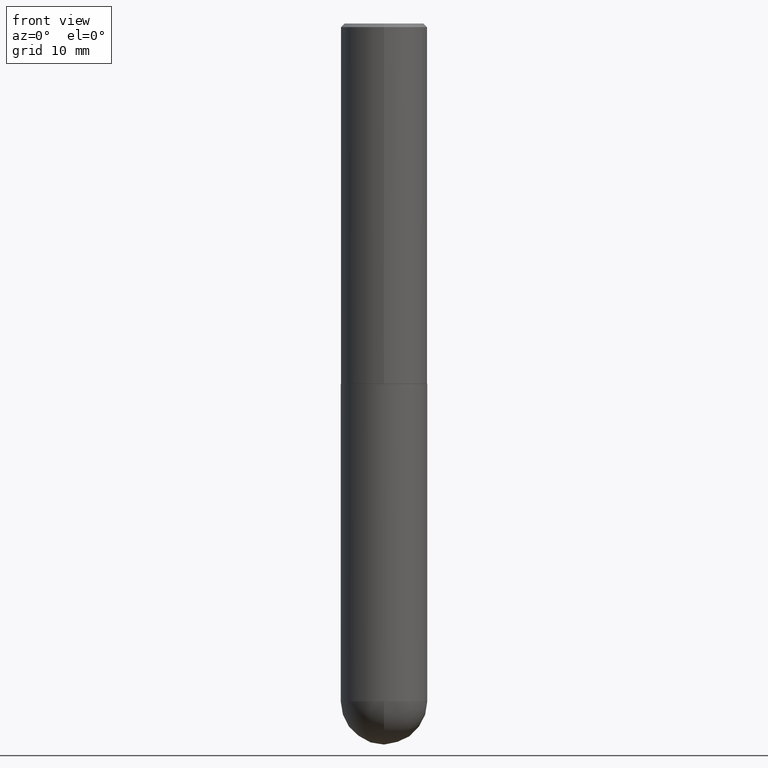
[diagram: clean part render]
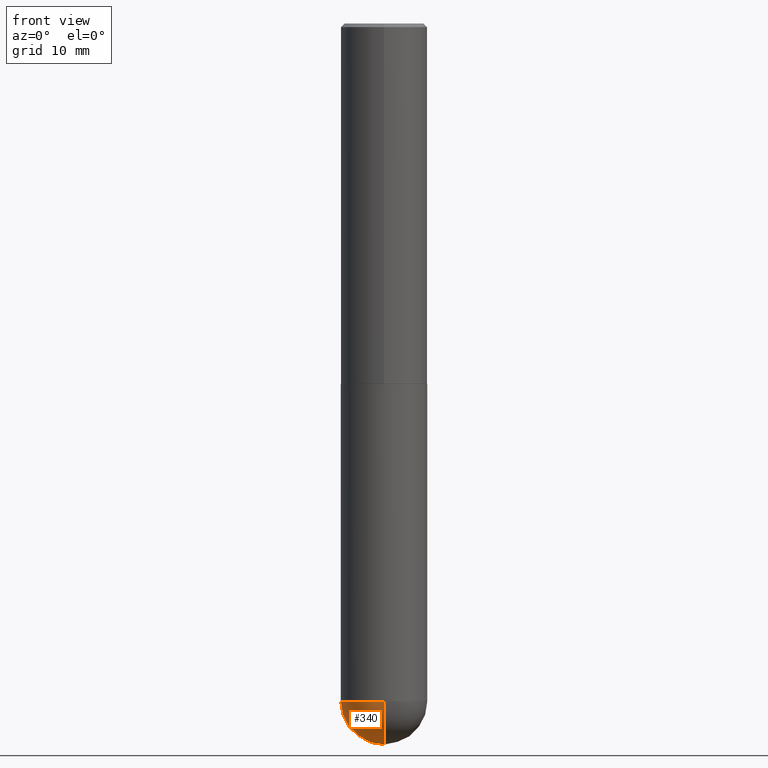
[diagram: same view with one face highlighted and labeled with its STEP entity id]
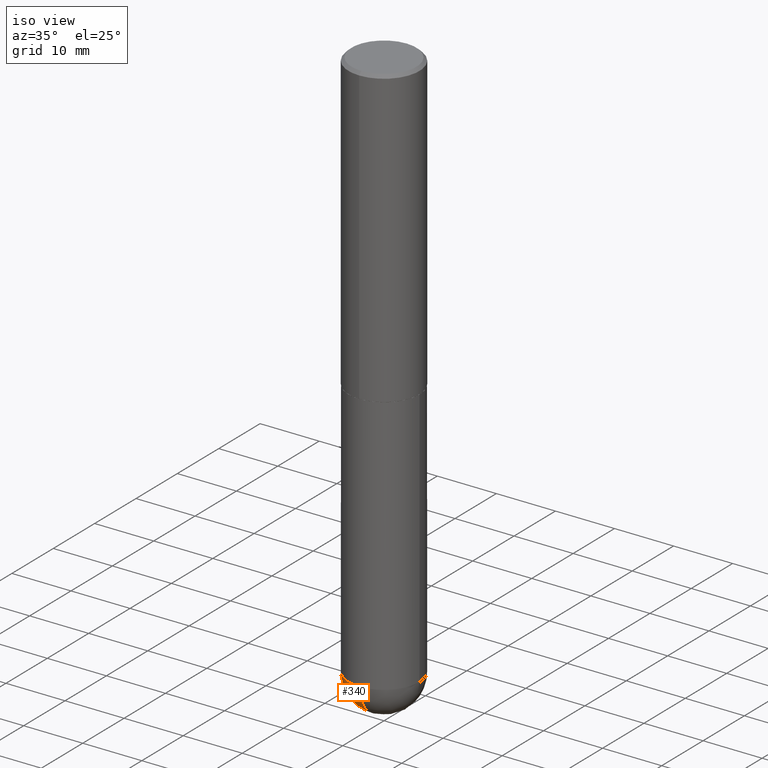
[diagram: same view with one face highlighted and labeled with its STEP entity id]
A machine part, front view. The second image highlights one B-rep face of the part: STEP entity #340.
A second angle (iso view) of the same face is appended — the face is thin or edge-on in the first view.
In plain terms, the highlighted spherical surface has radius 5.9995 mm.
Its self-contained STEP definition (entity closure, byte-faithful):
#18 = DIRECTION ( 'NONE',  ( -2.445468806185136597E-29, 3.491481338843145583E-15, 1.000000000000000000 ) ) ;
#20 = AXIS2_PLACEMENT_3D ( 'NONE', #272, #152, #342 ) ;
#36 = ORIENTED_EDGE ( 'NONE', *, *, #328, .F. ) ;
#49 = DIRECTION ( 'NONE',  ( -7.105427357601001070E-15, -1.000000000000000000, 0.000000000000000000 ) ) ;
#55 = CARTESIAN_POINT ( 'NONE',  ( 9.050190957929953666E-29, -1.292127413879071357E-14, -3.700800000000000090 ) ) ;
#57 = CIRCLE ( 'NONE', #120, 0.2362000000000002709 ) ;
#58 = EDGE_CURVE ( 'NONE', #216, #354, #57, .T. ) ;
#72 = AXIS2_PLACEMENT_3D ( 'NONE', #129, #285, #314 ) ;
#88 = CARTESIAN_POINT ( 'NONE',  ( -0.2361999999999999933, -8.218825635286368613E-15, -3.700800000000000090 ) ) ;
#95 = ORIENTED_EDGE ( 'NONE', *, *, #291, .F. ) ;
#111 = SPHERICAL_SURFACE ( 'NONE', #72, 0.2362000000000002709 ) ;
#120 = AXIS2_PLACEMENT_3D ( 'NONE', #399, #237, #49 ) ;
#129 = CARTESIAN_POINT ( 'NONE',  ( 8.719071180016067419E-29, -1.339545650693076387E-14, -3.700800000000000090 ) ) ;
#149 = CIRCLE ( 'NONE', #387, 0.2361999999999999933 ) ;
#152 = DIRECTION ( 'NONE',  ( -2.445468806185136597E-29, 3.491481338843145583E-15, 1.000000000000000000 ) ) ;
#162 = ORIENTED_EDGE ( 'NONE', *, *, #58, .T. ) ;
#179 = CARTESIAN_POINT ( 'NONE',  ( 9.306790425912204830E-29, -1.420568132046758614E-14, -3.937000000000000277 ) ) ;
#183 = DIRECTION ( 'NONE',  ( 1.000000000000000000, -6.982962677686265133E-15, 0.000000000000000000 ) ) ;
#216 = VERTEX_POINT ( 'NONE', #179 ) ;
#217 = DIRECTION ( 'NONE',  ( 1.000000000000000000, -6.982962677686265922E-15, 4.883557194083112340E-29 ) ) ;
#218 = CARTESIAN_POINT ( 'NONE',  ( 1.649375784469585666E-15, 0.2361999999999869759, -3.700800000000000978 ) ) ;
#224 = EDGE_LOOP ( 'NONE', ( #308, #162, #95, #36 ) ) ;
#237 = DIRECTION ( 'NONE',  ( -1.000000000000000000, 7.105427357601001070E-15, -4.926315508542082329E-29 ) ) ;
#250 = VERTEX_POINT ( 'NONE', #218 ) ;
#270 = FACE_OUTER_BOUND ( 'NONE', #224, .T. ) ;
#272 = CARTESIAN_POINT ( 'NONE',  ( 9.050190957929953666E-29, -1.292127413879071357E-14, -3.700800000000000090 ) ) ;
#282 = CARTESIAN_POINT ( 'NONE',  ( -1.678301941865268633E-15, -0.2362000000000132882, -3.700799999999998757 ) ) ;
#285 = DIRECTION ( 'NONE',  ( -1.000000000000000000, 6.982962677686265922E-15, -4.883557194083112901E-29 ) ) ;
#291 = EDGE_CURVE ( 'NONE', #317, #354, #395, .T. ) ;
#308 = ORIENTED_EDGE ( 'NONE', *, *, #323, .F. ) ;
#310 = CARTESIAN_POINT ( 'NONE',  ( 8.719071180016067419E-29, -1.339545650693076387E-14, -3.700800000000000090 ) ) ;
#314 = DIRECTION ( 'NONE',  ( 6.982962677686265922E-15, 1.000000000000000000, -4.626330217890364603E-15 ) ) ;
#317 = VERTEX_POINT ( 'NONE', #88 ) ;
#323 = EDGE_CURVE ( 'NONE', #216, #250, #334, .T. ) ;
#328 = EDGE_CURVE ( 'NONE', #250, #317, #149, .T. ) ;
#334 = CIRCLE ( 'NONE', #403, 0.2362000000000002709 ) ;
#340 = ADVANCED_FACE ( 'NONE', ( #270 ), #111, .T. ) ;
#342 = DIRECTION ( 'NONE',  ( 1.000000000000000000, -6.982962677686265133E-15, 0.000000000000000000 ) ) ;
#345 = DIRECTION ( 'NONE',  ( 6.982962677686265922E-15, 1.000000000000000000, 0.000000000000000000 ) ) ;
#354 = VERTEX_POINT ( 'NONE', #282 ) ;
#387 = AXIS2_PLACEMENT_3D ( 'NONE', #55, #18, #183 ) ;
#395 = CIRCLE ( 'NONE', #20, 0.2361999999999999933 ) ;
#399 = CARTESIAN_POINT ( 'NONE',  ( 8.719071180016067419E-29, -1.339545650693076387E-14, -3.700800000000000090 ) ) ;
#403 = AXIS2_PLACEMENT_3D ( 'NONE', #310, #217, #345 ) ;